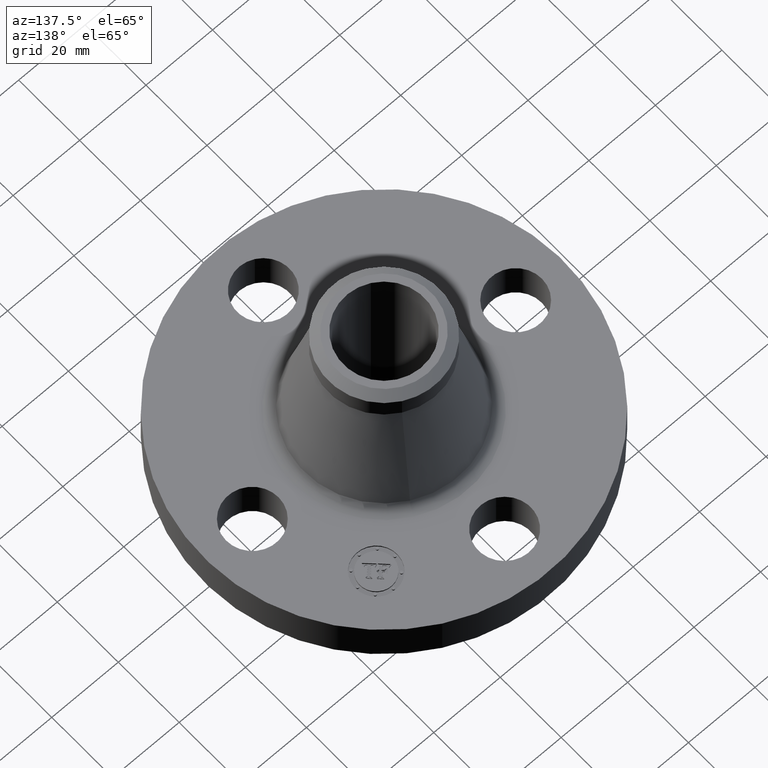
[diagram: clean part render]
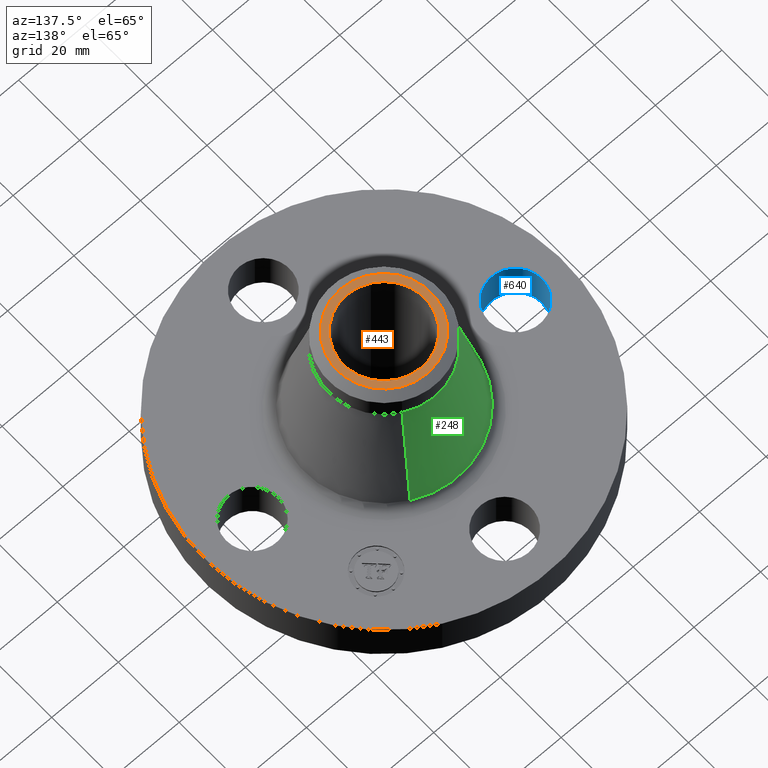
[diagram: same view with three faces highlighted in distinct colors, each labeled with its STEP entity id]
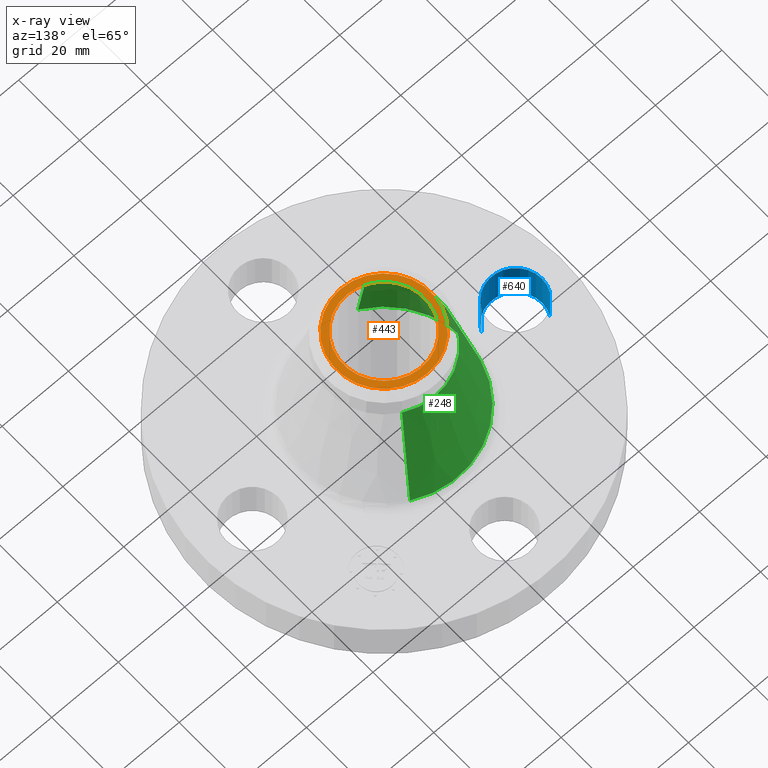
[diagram: x-ray of the same camera — body ghosted, the three highlighted faces saturated]
A machine part, auxiliary view with three faces highlighted in distinct colors.
The next image is the same camera in x-ray (body ghosted, the three faces saturated) — at least one of them is partly hidden behind the body in this view.
Their STEP definitions:

[orange] entity #443 — the highlighted planar face has unit normal (0, 0, -1).
#322=AXIS2_PLACEMENT_3D('Circle Axis2P3D',#320,#321,$) ;
#347=AXIS2_PLACEMENT_3D('Circle Axis2P3D',#345,#346,$) ;
#382=AXIS2_PLACEMENT_3D('Circle Axis2P3D',#380,#381,$) ;
#428=AXIS2_PLACEMENT_3D('Plane Axis2P3D',#425,#426,#427) ;
#432=AXIS2_PLACEMENT_3D('Circle Axis2P3D',#430,#431,$) ;
#317=CARTESIAN_POINT('Vertex',(0.267155162633,-0.489024244991,2.12000000001)) ;
#320=CARTESIAN_POINT('Axis2P3D Location',(0.,0.,2.12000000001)) ;
#324=CARTESIAN_POINT('Vertex',(-0.267155162633,0.489024244991,2.12000000001)) ;
#345=CARTESIAN_POINT('Axis2P3D Location',(0.,0.,2.12000000001)) ;
#349=CARTESIAN_POINT('Vertex',(0.229405120223,0.419923255866,2.12000000001)) ;
#351=CARTESIAN_POINT('Vertex',(-0.229405120223,-0.419923255866,2.12000000001)) ;
#380=CARTESIAN_POINT('Axis2P3D Location',(0.,0.,2.12000000001)) ;
#425=CARTESIAN_POINT('Axis2P3D Location',(0.,0.657500000003,2.12000000001)) ;
#430=CARTESIAN_POINT('Axis2P3D Location',(0.,0.,2.12000000001)) ;
#321=DIRECTION('Axis2P3D Direction',(0.,0.,-0.0393700787402)) ;
#346=DIRECTION('Axis2P3D Direction',(0.,0.,-0.0393700787402)) ;
#381=DIRECTION('Axis2P3D Direction',(0.,0.,-0.0393700787402)) ;
#426=DIRECTION('Axis2P3D Direction',(0.,0.,-0.0393700787402)) ;
#427=DIRECTION('Axis2P3D XDirection',(0.0393700787402,0.,0.)) ;
#431=DIRECTION('Axis2P3D Direction',(0.,0.,-0.0393700787402)) ;
#436=ORIENTED_EDGE('',*,*,#434,.T.) ;
#437=ORIENTED_EDGE('',*,*,#326,.T.) ;
#440=ORIENTED_EDGE('',*,*,#384,.T.) ;
#441=ORIENTED_EDGE('',*,*,#353,.T.) ;
#442=FACE_BOUND('',#439,.T.) ;
#443=ADVANCED_FACE('PartBody',(#438,#442),#429,.F.) ;
#323=CIRCLE('generated circle',#322,0.557240157482) ;
#348=CIRCLE('generated circle',#347,0.478500000002) ;
#383=CIRCLE('generated circle',#382,0.478500000002) ;
#433=CIRCLE('generated circle',#432,0.557240157482) ;
#326=EDGE_CURVE('',#325,#318,#323,.F.) ;
#353=EDGE_CURVE('',#350,#352,#348,.T.) ;
#384=EDGE_CURVE('',#352,#350,#383,.T.) ;
#434=EDGE_CURVE('',#318,#325,#433,.F.) ;
#435=EDGE_LOOP('',(#436,#437)) ;
#439=EDGE_LOOP('',(#440,#441)) ;
#438=FACE_OUTER_BOUND('',#435,.T.) ;
#429=PLANE('',#428) ;
#318=VERTEX_POINT('',#317) ;
#325=VERTEX_POINT('',#324) ;
#350=VERTEX_POINT('',#349) ;
#352=VERTEX_POINT('',#351) ;

[blue] entity #640 — the highlighted cylindrical surface (edge-blend (fillet) strip) has radius 7.874 mm, axis along (-0, 0, -1).
#532=AXIS2_PLACEMENT_3D('Circle Axis2P3D',#530,#531,$) ;
#613=AXIS2_PLACEMENT_3D('Cylinder Axis2P3D',#610,#611,#612) ;
#631=AXIS2_PLACEMENT_3D('Circle Axis2P3D',#629,#630,$) ;
#530=CARTESIAN_POINT('Axis2P3D Location',(-1.56000000001,-2.79741234551E-016,0.)) ;
#534=CARTESIAN_POINT('Vertex',(-1.28794940582,-0.148621916968,0.)) ;
#536=CARTESIAN_POINT('Vertex',(-1.83205059419,0.148621916968,0.)) ;
#610=CARTESIAN_POINT('Axis2P3D Location',(-1.56000000001,-1.91044900668E-016,0.496062992128)) ;
#615=CARTESIAN_POINT('Line Origine',(-1.28794940582,-0.148621916968,0.250000000001)) ;
#619=CARTESIAN_POINT('Vertex',(-1.28794940582,-0.148621916968,0.500000000002)) ;
#622=CARTESIAN_POINT('Line Origine',(-1.83205059419,0.148621916968,0.250000000001)) ;
#626=CARTESIAN_POINT('Vertex',(-1.83205059419,0.148621916968,0.500000000002)) ;
#629=CARTESIAN_POINT('Axis2P3D Location',(-1.56000000001,-1.91044900668E-016,0.500000000002)) ;
#531=DIRECTION('Axis2P3D Direction',(0.,0.,-0.0393700787402)) ;
#611=DIRECTION('Axis2P3D Direction',(-0.,0.,-0.0393700787402)) ;
#612=DIRECTION('Axis2P3D XDirection',(-0.0345504945626,0.0188750212049,0.)) ;
#616=DIRECTION('Vector Direction',(0.,0.,-0.0393700787402)) ;
#623=DIRECTION('Vector Direction',(0.,0.,-0.0393700787402)) ;
#630=DIRECTION('Axis2P3D Direction',(-0.,0.,-0.0393700787402)) ;
#617=VECTOR('Line Direction',#616,0.0393700787402) ;
#624=VECTOR('Line Direction',#623,0.0393700787402) ;
#635=ORIENTED_EDGE('',*,*,#621,.F.) ;
#636=ORIENTED_EDGE('',*,*,#538,.T.) ;
#637=ORIENTED_EDGE('',*,*,#628,.T.) ;
#638=ORIENTED_EDGE('',*,*,#633,.F.) ;
#640=ADVANCED_FACE('PartBody',(#639),#614,.F.) ;
#533=CIRCLE('generated circle',#532,0.310000000001) ;
#632=CIRCLE('generated circle',#631,0.310000000001) ;
#614=CYLINDRICAL_SURFACE('generated cylinder',#613,0.310000000001) ;
#538=EDGE_CURVE('',#535,#537,#533,.T.) ;
#621=EDGE_CURVE('',#535,#620,#618,.F.) ;
#628=EDGE_CURVE('',#537,#627,#625,.F.) ;
#633=EDGE_CURVE('',#620,#627,#632,.T.) ;
#634=EDGE_LOOP('',(#635,#636,#637,#638)) ;
#639=FACE_OUTER_BOUND('',#634,.T.) ;
#618=LINE('Line',#615,#617) ;
#625=LINE('Line',#622,#624) ;
#535=VERTEX_POINT('',#534) ;
#537=VERTEX_POINT('',#536) ;
#620=VERTEX_POINT('',#619) ;
#627=VERTEX_POINT('',#626) ;

[green] entity #248 — the highlighted conical surface has half-angle 13.448 deg.
#196=AXIS2_PLACEMENT_3D('Circle Axis2P3D',#194,#195,$) ;
#209=AXIS2_PLACEMENT_3D('Cone Axis2P3D',#206,#207,#208) ;
#239=AXIS2_PLACEMENT_3D('Circle Axis2P3D',#237,#238,$) ;
#167=CARTESIAN_POINT('Vertex',(0.454485121941,0.831929435415,0.592091805544)) ;
#174=CARTESIAN_POINT('Vertex',(-0.454485121941,-0.831929435415,0.592091805544)) ;
#194=CARTESIAN_POINT('Axis2P3D Location',(0.,0.,0.592091805544)) ;
#206=CARTESIAN_POINT('Axis2P3D Location',(0.,0.,1.80684744459)) ;
#211=CARTESIAN_POINT('Line Origine',(0.384853706787,0.70446998493,1.19946962507)) ;
#215=CARTESIAN_POINT('Vertex',(0.315222291634,0.577010534445,1.80684744459)) ;
#222=CARTESIAN_POINT('Vertex',(-0.315222291634,-0.577010534445,1.80684744459)) ;
#225=CARTESIAN_POINT('Line Origine',(-0.384853706787,-0.70446998493,1.19946962507)) ;
#237=CARTESIAN_POINT('Axis2P3D Location',(0.,0.,1.80684744459)) ;
#195=DIRECTION('Axis2P3D Direction',(0.,0.,-0.0393700787402)) ;
#207=DIRECTION('Axis2P3D Direction',(0.,0.,-0.0393700787402)) ;
#208=DIRECTION('Axis2P3D XDirection',(-0.0188750212049,-0.0345504945626,0.)) ;
#212=DIRECTION('Vector Direction',(0.00438973135156,0.00803534934065,-0.0382905539218)) ;
#226=DIRECTION('Vector Direction',(-0.00438973135156,-0.00803534934065,-0.0382905539218)) ;
#238=DIRECTION('Axis2P3D Direction',(0.,0.,-0.0393700787402)) ;
#213=VECTOR('Line Direction',#212,0.0393700787402) ;
#227=VECTOR('Line Direction',#226,0.0393700787402) ;
#243=ORIENTED_EDGE('',*,*,#198,.F.) ;
#244=ORIENTED_EDGE('',*,*,#229,.T.) ;
#245=ORIENTED_EDGE('',*,*,#241,.T.) ;
#246=ORIENTED_EDGE('',*,*,#217,.F.) ;
#248=ADVANCED_FACE('PartBody',(#247),#210,.T.) ;
#197=CIRCLE('generated circle',#196,0.947978539617) ;
#240=CIRCLE('generated circle',#239,0.657500000003) ;
#210=CONICAL_SURFACE('Cone',#209,0.657500000003,0.234717547531) ;
#198=EDGE_CURVE('',#175,#168,#197,.T.) ;
#217=EDGE_CURVE('',#168,#216,#214,.F.) ;
#229=EDGE_CURVE('',#175,#223,#228,.F.) ;
#241=EDGE_CURVE('',#223,#216,#240,.T.) ;
#242=EDGE_LOOP('',(#243,#244,#245,#246)) ;
#247=FACE_OUTER_BOUND('',#242,.T.) ;
#214=LINE('Line',#211,#213) ;
#228=LINE('Line',#225,#227) ;
#168=VERTEX_POINT('',#167) ;
#175=VERTEX_POINT('',#174) ;
#216=VERTEX_POINT('',#215) ;
#223=VERTEX_POINT('',#222) ;